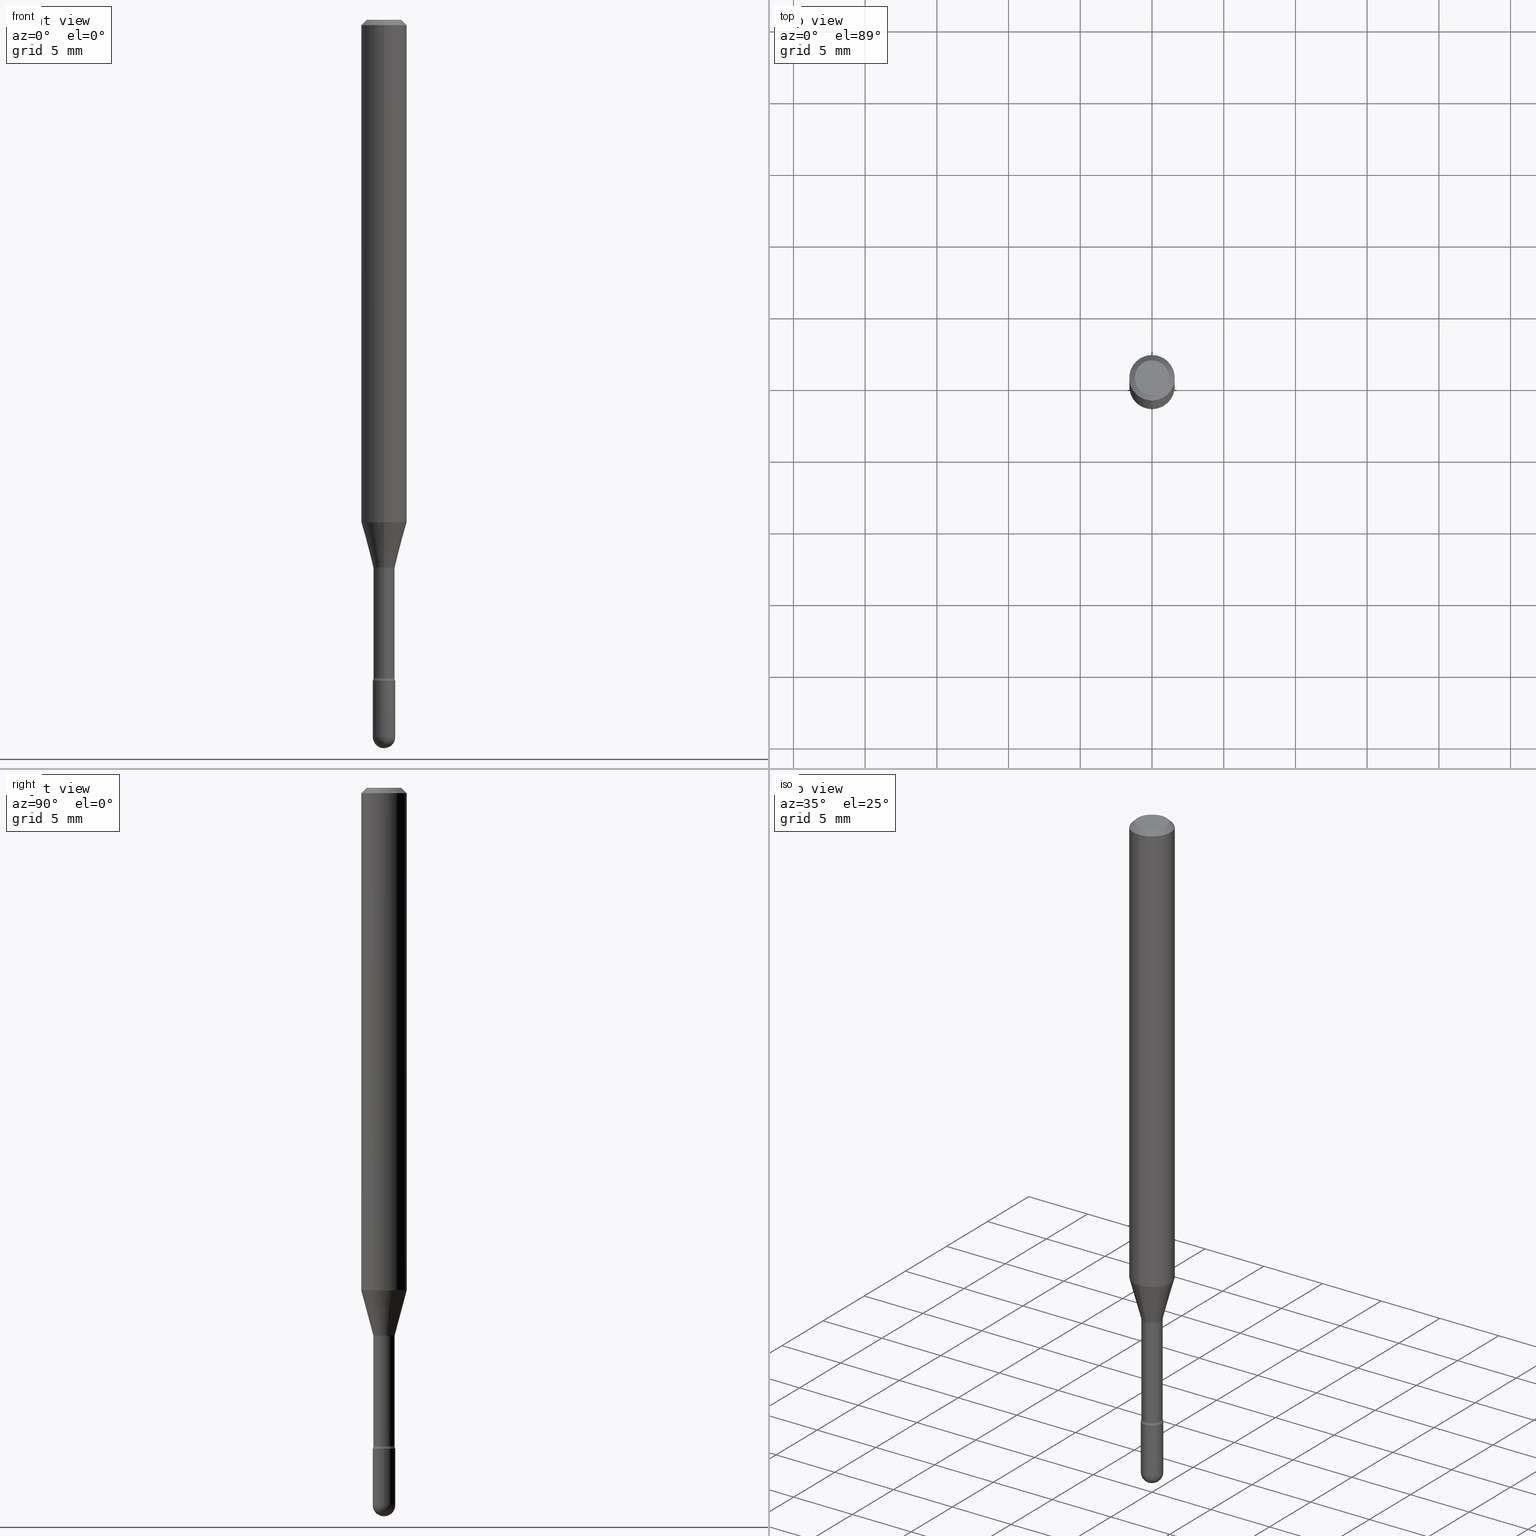
[diagram: canonical four-view strip — front | top / right | iso, engineering-drawing reading convention]
A machine part, canonical four-view strip (front | top / right | iso — engineering-drawing reading convention). The complete STEP part file that produces these views, byte-faithful:
ISO-10303-21;
HEADER;
FILE_DESCRIPTION (( 'STEP AP203' ),
    '1' );
FILE_NAME ('03710.STEP',
    '2024-04-09T20:13:52',
    ( '' ),
    ( '' ),
    'SwSTEP 2.0',
    'SolidWorks 2023',
    '' );
FILE_SCHEMA (( 'CONFIG_CONTROL_DESIGN' ));
ENDSEC;

DATA;
#1 = APPROVAL_PERSON_ORGANIZATION ( #212, #124, #166 ) ;
#2 = DIRECTION ( 'NONE',  ( -6.982962677686265922E-15, -1.000000000000000000, 3.491508908227665819E-15 ) ) ;
#3 = DIRECTION ( 'NONE',  ( 1.000000000000000000, -6.982962677686265922E-15, 4.876176775795935793E-29 ) ) ;
#4 = PERSON_AND_ORGANIZATION_ROLE ( 'classification_officer' ) ;
#5 = DIRECTION ( 'NONE',  ( -2.445468806185136877E-29, 3.491481338843145188E-15, 1.000000000000000000 ) ) ;
#6 = FACE_OUTER_BOUND ( 'NONE', #143, .T. ) ;
#7 = CALENDAR_DATE ( 2024, 9, 4 ) ;
#8 = AXIS2_PLACEMENT_3D ( 'NONE', #379, #525, #290 ) ;
#9 = VECTOR ( 'NONE', #113, 39.37007874015748143 ) ;
#10 = ORIENTED_EDGE ( 'NONE', *, *, #153, .F. ) ;
#11 = DIRECTION ( 'NONE',  ( -2.445449554586822988E-29, 3.491508908227663846E-15, 1.000000000000000000 ) ) ;
#12 = CARTESIAN_POINT ( 'NONE',  ( 3.682785373222362637E-29, -5.258124385996159682E-15, -1.505974787463811193 ) ) ;
#13 = DIRECTION ( 'NONE',  ( -6.982962677686266711E-15, -1.000000000000000000, 3.491508908227663846E-15 ) ) ;
#14 = AXIS2_PLACEMENT_3D ( 'NONE', #401, #169, #529 ) ;
#15 = CIRCLE ( 'NONE', #424, 0.03099999999999999978 ) ;
#16 = AXIS2_PLACEMENT_3D ( 'NONE', #60, #92, #13 ) ;
#17 = LINE ( 'NONE', #230, #24 ) ;
#18 = EDGE_LOOP ( 'NONE', ( #224, #415 ) ) ;
#19 = ORIENTED_EDGE ( 'NONE', *, *, #437, .F. ) ;
#20 = DIRECTION ( 'NONE',  ( -2.445449554586822988E-29, 3.491508908227663846E-15, 1.000000000000000000 ) ) ;
#21 = ORIENTED_EDGE ( 'NONE', *, *, #240, .F. ) ;
#22 = DIRECTION ( 'NONE',  ( -6.982962677686265922E-15, -1.000000000000000000, 3.483106191921935554E-15 ) ) ;
#23 = VERTEX_POINT ( 'NONE', #145 ) ;
#24 = VECTOR ( 'NONE', #356, 39.37007874015748143 ) ;
#25 = EDGE_LOOP ( 'NONE', ( #419, #312, #549, #412 ) ) ;
#26 = LENGTH_MEASURE_WITH_UNIT ( LENGTH_MEASURE( 0.02539999999999999897 ), #64 );
#27 = CARTESIAN_POINT ( 'NONE',  ( 3.668174331880254643E-31, -5.237263362341524514E-17, -0.01500000000000008271 ) ) ;
#28 = ORIENTED_EDGE ( 'NONE', *, *, #34, .T. ) ;
#29 = ORIENTED_EDGE ( 'NONE', *, *, #343, .T. ) ;
#30 = DIRECTION ( 'NONE',  ( -2.445449554586822988E-29, 3.491508908227663846E-15, 1.000000000000000000 ) ) ;
#31 = DIRECTION ( 'NONE',  ( 7.105427357601001859E-15, 1.000000000000000000, 0.000000000000000000 ) ) ;
#32 = ORIENTED_EDGE ( 'NONE', *, *, #454, .F. ) ;
#33 = DIRECTION ( 'NONE',  ( -6.982962677686265922E-15, -1.000000000000000000, 0.000000000000000000 ) ) ;
#34 = EDGE_CURVE ( 'NONE', #120, #344, #82, .T. ) ;
#35 = ADVANCED_FACE ( 'NONE', ( #304 ), #440, .T. ) ;
#36 = CIRCLE ( 'NONE', #16, 0.04749999999999999362 ) ;
#37 = EDGE_CURVE ( 'NONE', #120, #229, #253, .T. ) ;
#38 = PERSON_AND_ORGANIZATION ( #199, #167 ) ;
#39 = ORIENTED_EDGE ( 'NONE', *, *, #354, .F. ) ;
#40 = COORDINATED_UNIVERSAL_TIME_OFFSET ( 5, 0, .BEHIND. ) ;
#41 = DIRECTION ( 'NONE',  ( -7.105427357601001070E-15, -1.000000000000000000, 0.000000000000000000 ) ) ;
#42 = CIRCLE ( 'NONE', #8, 0.02914999999999999883 ) ;
#43 = TOROIDAL_SURFACE ( 'NONE', #204, 0.04415000000000000174, 0.01500000000000002373 ) ;
#44 = DATE_AND_TIME ( #531, #432 ) ;
#45 = DIRECTION ( 'NONE',  ( -6.982962677686266711E-15, -1.000000000000000000, 0.000000000000000000 ) ) ;
#46 = LINE ( 'NONE', #318, #59 ) ;
#47 = CIRCLE ( 'NONE', #90, 0.03100000000000001019 ) ;
#48 = SPHERICAL_SURFACE ( 'NONE', #423, 0.03100000000000001019 ) ;
#49 = VECTOR ( 'NONE', #5, 39.37007874015748143 ) ;
#50 = APPROVAL_PERSON_ORGANIZATION ( #80, #289, #255 ) ;
#51 = DIRECTION ( 'NONE',  ( 1.000000000000000000, -6.982962677686266711E-15, 4.876176775795935232E-29 ) ) ;
#52 = CC_DESIGN_PERSON_AND_ORGANIZATION_ASSIGNMENT ( #388, #244, ( #324 ) ) ;
#53 = CARTESIAN_POINT ( 'NONE',  ( 3.373585954896674557E-29, -4.816662601810898032E-15, -1.379536105567578330 ) ) ;
#54 = CARTESIAN_POINT ( 'NONE',  ( -2.035533620545178324E-16, -0.02915000000000525851, -1.505974787463811193 ) ) ;
#55 = CLOSED_SHELL ( 'NONE', ( #527, #225, #391, #135, #270, #251, #442, #314, #248, #470, #535, #138, #298, #481 ) ) ;
#56 = DIRECTION ( 'NONE',  ( -2.445449554586822988E-29, 3.491508908227663846E-15, 1.000000000000000000 ) ) ;
#57 = ORIENTED_EDGE ( 'NONE', *, *, #103, .T. ) ;
#58 = TOROIDAL_SURFACE ( 'NONE', #385, 0.04415000000000003644, 0.01500000000000001332 ) ;
#59 = VECTOR ( 'NONE', #505, 39.37007874015748143 ) ;
#60 = CARTESIAN_POINT ( 'NONE',  ( 2.023412866175955222E-45, -2.889206075058598815E-31, -8.274572252578077027E-17 ) ) ;
#61 = ORIENTED_EDGE ( 'NONE', *, *, #37, .T. ) ;
#62 = APPLICATION_PROTOCOL_DEFINITION ( 'international standard', 'config_control_design', 1994, #555 ) ;
#63 = ORIENTED_EDGE ( 'NONE', *, *, #370, .T. ) ;
#64 =( LENGTH_UNIT ( ) NAMED_UNIT ( * ) SI_UNIT ( $, .METRE. ) );
#65 = FACE_OUTER_BOUND ( 'NONE', #272, .T. ) ;
#66 = ORIENTED_EDGE ( 'NONE', *, *, #491, .F. ) ;
#67 = AXIS2_PLACEMENT_3D ( 'NONE', #53, #11, #263 ) ;
#68 = LOCAL_TIME ( 16, 13, 52.00000000000000000, #337 ) ;
#69 = DIRECTION ( 'NONE',  ( -6.982962677686266711E-15, -1.000000000000000000, 3.491508908227663846E-15 ) ) ;
#70 = ORIENTED_EDGE ( 'NONE', *, *, #153, .T. ) ;
#71 = DIRECTION ( 'NONE',  ( -2.438088387897960049E-29, 3.491481338843145188E-15, 1.000000000000000000 ) ) ;
#72 = CYLINDRICAL_SURFACE ( 'NONE', #132, 0.06250000000000000000 ) ;
#73 = DIRECTION ( 'NONE',  ( 1.000000000000000000, -6.982962677686270655E-15, 0.000000000000000000 ) ) ;
#74 = LINE ( 'NONE', #369, #9 ) ;
#75 = DIRECTION ( 'NONE',  ( -6.982962677686266711E-15, -1.000000000000000000, 0.000000000000000000 ) ) ;
#76 = CARTESIAN_POINT ( 'NONE',  ( -2.202682480855828862E-16, -0.03100000000000687969, -1.969000000000000306 ) ) ;
#77 = CARTESIAN_POINT ( 'NONE',  ( 3.840629472727447874E-16, 0.04749999999999999362, -2.485923956665947867E-16 ) ) ;
#78 = AXIS2_PLACEMENT_3D ( 'NONE', #27, #195, #366 ) ;
#79 = DIRECTION ( 'NONE',  ( -2.445449554586822988E-29, 3.491508908227663846E-15, 1.000000000000000000 ) ) ;
#80 = PERSON_AND_ORGANIZATION ( #199, #167 ) ;
#81 = APPLICATION_PROTOCOL_DEFINITION ( 'international standard', 'config_control_design', 1994, #84 ) ;
#82 = CIRCLE ( 'NONE', #405, 0.01500000000000001853 ) ;
#83 = CIRCLE ( 'NONE', #406, 0.03099999999999999978 ) ;
#84 = APPLICATION_CONTEXT ( 'configuration controlled 3d designs of mechanical parts and assemblies' ) ;
#85 = EDGE_CURVE ( 'NONE', #532, #538, #252, .T. ) ;
#86 = ORIENTED_EDGE ( 'NONE', *, *, #305, .T. ) ;
#87 = DATE_AND_TIME ( #342, #68 ) ;
#88 = EDGE_CURVE ( 'NONE', #106, #221, #280, .T. ) ;
#89 = DIRECTION ( 'NONE',  ( 6.982962677686265922E-15, 1.000000000000000000, -3.491508908227663846E-15 ) ) ;
#90 = AXIS2_PLACEMENT_3D ( 'NONE', #274, #457, #325 ) ;
#91 = AXIS2_PLACEMENT_3D ( 'NONE', #417, #30, #22 ) ;
#92 = DIRECTION ( 'NONE',  ( -2.445449554586822988E-29, 3.491508908227663846E-15, 1.000000000000000000 ) ) ;
#93 = PRODUCT_DEFINITION_SHAPE ( 'NONE', 'NONE',  #324 ) ;
#94 = PLANE ( 'NONE',  #559 ) ;
#95 = ORIENTED_EDGE ( 'NONE', *, *, #186, .F. ) ;
#96 = ORIENTED_EDGE ( 'NONE', *, *, #510, .T. ) ;
#97 = CLOSED_SHELL ( 'NONE', ( #485, #223, #285, #198, #35 ) ) ;
#98 = AXIS2_PLACEMENT_3D ( 'NONE', #12, #222, #353 ) ;
#99 = ORIENTED_EDGE ( 'NONE', *, *, #416, .T. ) ;
#100 = MECHANICAL_CONTEXT ( 'NONE', #555, 'mechanical' ) ;
#101 = CARTESIAN_POINT ( 'NONE',  ( -1.169113584055446105E-44, 1.669184350826100908E-30, 4.780733988912460139E-16 ) ) ;
#102 = ORIENTED_EDGE ( 'NONE', *, *, #88, .T. ) ;
#103 = EDGE_CURVE ( 'NONE', #327, #23, #211, .T. ) ;
#104 =( NAMED_UNIT ( * ) PLANE_ANGLE_UNIT ( ) SI_UNIT ( $, .RADIAN. ) );
#105 = CARTESIAN_POINT ( 'NONE',  ( 4.815128079378534076E-29, -6.874726756182154000E-15, -1.969000000000000306 ) ) ;
#106 = VERTEX_POINT ( 'NONE', #294 ) ;
#107 = FACE_OUTER_BOUND ( 'NONE', #421, .T. ) ;
#108 = AXIS2_PLACEMENT_3D ( 'NONE', #299, #445, #51 ) ;
#109 = CIRCLE ( 'NONE', #355, 0.03099999999999999978 ) ;
#110 = EDGE_CURVE ( 'NONE', #229, #348, #484, .T. ) ;
#111 = ORIENTED_EDGE ( 'NONE', *, *, #541, .T. ) ;
#112 = EDGE_LOOP ( 'NONE', ( #509, #374, #111, #86 ) ) ;
#113 = DIRECTION ( 'NONE',  ( -4.851104656540964275E-15, -0.7071067811865500152, -0.7071067811865450192 ) ) ;
#114 = EDGE_CURVE ( 'NONE', #231, #456, #564, .T. ) ;
#115 = ORIENTED_EDGE ( 'NONE', *, *, #507, .T. ) ;
#116 = APPROVAL_ROLE ( '' ) ;
#117 = DIRECTION ( 'NONE',  ( -6.982962677686265922E-15, -1.000000000000000000, 3.491508908227663846E-15 ) ) ;
#118 = ORIENTED_EDGE ( 'NONE', *, *, #498, .T. ) ;
#119 = AXIS2_PLACEMENT_3D ( 'NONE', #448, #313, #400 ) ;
#120 = VERTEX_POINT ( 'NONE', #371 ) ;
#121 = APPROVAL_STATUS ( 'not_yet_approved' ) ;
#122 = DIRECTION ( 'NONE',  ( -1.000000000000000000, 7.105427357601001070E-15, -4.926315508542082329E-29 ) ) ;
#123 = CARTESIAN_POINT ( 'NONE',  ( 4.815128079378534076E-29, -6.874726756182154000E-15, -1.969000000000000306 ) ) ;
#124 = APPROVAL ( #528, 'UNSPECIFIED' ) ;
#125 = COORDINATED_UNIVERSAL_TIME_OFFSET ( 5, 0, .BEHIND. ) ;
#126 = SPHERICAL_SURFACE ( 'NONE', #193, 0.03100000000000001019 ) ;
#127 = LINE ( 'NONE', #389, #49 ) ;
#128 = LINE ( 'NONE', #480, #461 ) ;
#129 = CARTESIAN_POINT ( 'NONE',  ( 3.673291439443893536E-29, -5.244569350972242727E-15, -1.502092501787273271 ) ) ;
#130 = CIRCLE ( 'NONE', #449, 0.03100000000000001019 ) ;
#131 = DATE_TIME_ROLE ( 'creation_date' ) ;
#132 = AXIS2_PLACEMENT_3D ( 'NONE', #101, #493, #137 ) ;
#133 = DIRECTION ( 'NONE',  ( 1.000000000000000000, -6.982962677686270655E-15, 0.000000000000000000 ) ) ;
#134 = DIRECTION ( 'NONE',  ( 6.982962677686265922E-15, 1.000000000000000000, 0.000000000000000000 ) ) ;
#135 = ADVANCED_FACE ( 'NONE', ( #278 ), #558, .T. ) ;
#136 = DIRECTION ( 'NONE',  ( -6.982962677686265922E-15, -1.000000000000000000, 3.491508908227663846E-15 ) ) ;
#137 = DIRECTION ( 'NONE',  ( -6.982962677686265922E-15, -1.000000000000000000, 3.491508908227663846E-15 ) ) ;
#138 = ADVANCED_FACE ( 'NONE', ( #513 ), #58, .F. ) ;
#139 = LINE ( 'NONE', #309, #148 ) ;
#140 = CC_DESIGN_SECURITY_CLASSIFICATION ( #487, ( #548 ) ) ;
#141 = DIRECTION ( 'NONE',  ( -6.982962677686265922E-15, -1.000000000000000000, 0.000000000000000000 ) ) ;
#142 = LINE ( 'NONE', #227, #158 ) ;
#143 = EDGE_LOOP ( 'NONE', ( #168, #463, #365, #284 ) ) ;
#144 = EDGE_CURVE ( 'NONE', #348, #344, #42, .T. ) ;
#145 = CARTESIAN_POINT ( 'NONE',  ( -0.03099999999999999978, -6.383868704336178649E-15, -1.969000000000000306 ) ) ;
#146 = CARTESIAN_POINT ( 'NONE',  ( 4.440892098500961428E-16, 0.06249999999999514971, -1.379536105567578552 ) ) ;
#147 = EDGE_LOOP ( 'NONE', ( #407, #283, #459, #66 ) ) ;
#148 = VECTOR ( 'NONE', #201, 39.37007874015748143 ) ;
#149 = ORIENTED_EDGE ( 'NONE', *, *, #491, .T. ) ;
#150 = CARTESIAN_POINT ( 'NONE',  ( -2.035533620545106341E-16, -0.02915000000000633404, -1.806783525791634704 ) ) ;
#151 = CARTESIAN_POINT ( 'NONE',  ( 0.03099999999999999978, -6.550018991669739348E-15, -1.813999999999999835 ) ) ;
#152 = EDGE_LOOP ( 'NONE', ( #202, #382, #360, #446, #444 ) ) ;
#153 = EDGE_CURVE ( 'NONE', #316, #231, #130, .T. ) ;
#154 = ORIENTED_EDGE ( 'NONE', *, *, #362, .T. ) ;
#155 = CARTESIAN_POINT ( 'NONE',  ( 0.000000000000000000, 0.000000000000000000, 0.000000000000000000 ) ) ;
#156 = ORIENTED_EDGE ( 'NONE', *, *, #478, .F. ) ;
#157 = AXIS2_PLACEMENT_3D ( 'NONE', #123, #247, #73 ) ;
#158 = VECTOR ( 'NONE', #543, 39.37007874015748854 ) ;
#159 = DIRECTION ( 'NONE',  ( -2.445449554586822708E-29, 3.491508908227663846E-15, 1.000000000000000000 ) ) ;
#160 = DIRECTION ( 'NONE',  ( 1.000000000000000000, -7.105427357601001070E-15, 4.926315846169667550E-29 ) ) ;
#161 = DIRECTION ( 'NONE',  ( -2.445449554586822428E-29, 3.491508908227663846E-15, 1.000000000000000000 ) ) ;
#162 = CARTESIAN_POINT ( 'NONE',  ( -1.169113584055446105E-44, 1.669184350826100908E-30, 4.780733988912460139E-16 ) ) ;
#163 = DATE_AND_TIME ( #171, #376 ) ;
#164 = AXIS2_PLACEMENT_3D ( 'NONE', #383, #563, #2 ) ;
#165 = CONICAL_SURFACE ( 'NONE', #78, 0.06250000000000000000, 0.7853981633974483900 ) ;
#166 = APPROVAL_ROLE ( '' ) ;
#167 = ORGANIZATION ( 'UNSPECIFIED', 'UNSPECIFIED', '' ) ;
#168 = ORIENTED_EDGE ( 'NONE', *, *, #507, .F. ) ;
#169 = DIRECTION ( 'NONE',  ( -2.445449554586822988E-29, 3.491508908227663846E-15, 1.000000000000000000 ) ) ;
#170 = DIRECTION ( 'NONE',  ( 1.000000000000000000, -6.982962677686270655E-15, 0.000000000000000000 ) ) ;
#171 = CALENDAR_DATE ( 2024, 9, 4 ) ;
#172 = CARTESIAN_POINT ( 'NONE',  ( 3.668174331880254643E-31, -5.237263362341524514E-17, -0.01500000000000008271 ) ) ;
#173 = COORDINATED_UNIVERSAL_TIME_OFFSET ( 5, 0, .BEHIND. ) ;
#174 = ORIENTED_EDGE ( 'NONE', *, *, #110, .F. ) ;
#175 = AXIS2_PLACEMENT_3D ( 'NONE', #105, #367, #196 ) ;
#176 = CIRCLE ( 'NONE', #119, 0.02915000000000002311 ) ;
#177 = LOCAL_TIME ( 16, 13, 52.00000000000000000, #479 ) ;
#178 = FACE_OUTER_BOUND ( 'NONE', #237, .T. ) ;
#179 = APPROVAL ( #121, 'UNSPECIFIED' ) ;
#180 = CYLINDRICAL_SURFACE ( 'NONE', #414, 0.03099999999999999978 ) ;
#181 = MANIFOLD_SOLID_BREP ( 'Body-Move/Copy2[2]', #55 ) ;
#182 = CARTESIAN_POINT ( 'NONE',  ( 2.071232074741134460E-16, 0.02914999999999473568, -1.505974787463811193 ) ) ;
#183 = TOROIDAL_SURFACE ( 'NONE', #517, 0.04415000000000003644, 0.01500000000000001332 ) ;
#184 = CC_DESIGN_APPROVAL ( #124, ( #324 ) ) ;
#185 = DIRECTION ( 'NONE',  ( -2.445449554586822988E-29, 3.491508908227663846E-15, 1.000000000000000000 ) ) ;
#186 = EDGE_CURVE ( 'NONE', #456, #327, #203, .T. ) ;
#187 = ORIENTED_EDGE ( 'NONE', *, *, #541, .F. ) ;
#188 = EDGE_LOOP ( 'NONE', ( #557, #410, #216, #553 ) ) ;
#189 = DIRECTION ( 'NONE',  ( -6.982962677686265922E-15, -1.000000000000000000, 4.370956789862821150E-15 ) ) ;
#190 = ORIENTED_EDGE ( 'NONE', *, *, #530, .F. ) ;
#191 = MANIFOLD_SOLID_BREP ( 'Body-Move/Copy2[1]', #97 ) ;
#192 = VERTEX_POINT ( 'NONE', #340 ) ;
#193 = AXIS2_PLACEMENT_3D ( 'NONE', #430, #386, #210 ) ;
#194 = AXIS2_PLACEMENT_3D ( 'NONE', #277, #413, #69 ) ;
#195 = DIRECTION ( 'NONE',  ( 2.445449554586822988E-29, -3.491508908227663846E-15, -1.000000000000000000 ) ) ;
#196 = DIRECTION ( 'NONE',  ( 1.000000000000000000, -6.982962677686270655E-15, 0.000000000000000000 ) ) ;
#197 = ORIENTED_EDGE ( 'NONE', *, *, #186, .T. ) ;
#198 = ADVANCED_FACE ( 'NONE', ( #241 ), #48, .T. ) ;
#199 = PERSON ( 'UNSPECIFIED', 'UNSPECIFIED', 'UNSPECIFIED', ('UNSPECIFIED'), ('UNSPECIFIED'), ('UNSPECIFIED') ) ;
#200 = ORIENTED_EDGE ( 'NONE', *, *, #343, .F. ) ;
#201 = DIRECTION ( 'NONE',  ( -2.445449554586822708E-29, 3.491508908227663846E-15, 1.000000000000000000 ) ) ;
#202 = ORIENTED_EDGE ( 'NONE', *, *, #288, .F. ) ;
#203 = CIRCLE ( 'NONE', #265, 0.03099999999999999978 ) ;
#204 = AXIS2_PLACEMENT_3D ( 'NONE', #349, #536, #136 ) ;
#205 =( NAMED_UNIT ( * ) SI_UNIT ( $, .STERADIAN. ) SOLID_ANGLE_UNIT ( ) );
#206 = DIRECTION ( 'NONE',  ( -2.445449554586822988E-29, 3.491508908227663846E-15, 1.000000000000000000 ) ) ;
#207 = FACE_OUTER_BOUND ( 'NONE', #495, .T. ) ;
#208 = APPROVAL_DATE_TIME ( #256, #179 ) ;
#209 = DIRECTION ( 'NONE',  ( 1.000000000000000000, -6.982962677686270655E-15, 0.000000000000000000 ) ) ;
#210 = DIRECTION ( 'NONE',  ( 6.982962677686265922E-15, 1.000000000000000000, 0.000000000000000000 ) ) ;
#211 = CIRCLE ( 'NONE', #157, 0.03099999999999999978 ) ;
#212 = PERSON_AND_ORGANIZATION ( #199, #167 ) ;
#213 = CARTESIAN_POINT ( 'NONE',  ( 4.815128079378533515E-29, -6.874726756182153211E-15, -1.968999999999999861 ) ) ;
#214 = DIRECTION ( 'NONE',  ( -6.982962677686265922E-15, -1.000000000000000000, 3.483106191921935554E-15 ) ) ;
#215 = EDGE_CURVE ( 'NONE', #261, #341, #502, .T. ) ;
#216 = ORIENTED_EDGE ( 'NONE', *, *, #144, .T. ) ;
#217 = AXIS2_PLACEMENT_3D ( 'NONE', #246, #71, #3 ) ;
#218 = CARTESIAN_POINT ( 'NONE',  ( 3.316907271900976096E-16, 0.04749999999999999362, 3.181716504191863621E-17 ) ) ;
#219 = EDGE_CURVE ( 'NONE', #106, #506, #471, .T. ) ;
#220 = DIRECTION ( 'NONE',  ( 1.000000000000000000, -6.982962677686266711E-15, 4.876176775795935232E-29 ) ) ;
#221 = VERTEX_POINT ( 'NONE', #394 ) ;
#222 = DIRECTION ( 'NONE',  ( -2.445449554586822988E-29, 3.491508908227663846E-15, 1.000000000000000000 ) ) ;
#223 = ADVANCED_FACE ( 'NONE', ( #297 ), #126, .T. ) ;
#224 = ORIENTED_EDGE ( 'NONE', *, *, #249, .T. ) ;
#225 = ADVANCED_FACE ( 'NONE', ( #207 ), #293, .T. ) ;
#226 = AXIS2_PLACEMENT_3D ( 'NONE', #477, #250, #31 ) ;
#227 = CARTESIAN_POINT ( 'NONE',  ( 2.107548809652055165E-16, 0.02966111260565873833, -1.502092501787273271 ) ) ;
#228 = AXIS2_PLACEMENT_3D ( 'NONE', #499, #20, #189 ) ;
#229 = VERTEX_POINT ( 'NONE', #476 ) ;
#230 = CARTESIAN_POINT ( 'NONE',  ( -2.035533620545547363E-16, -0.02915000000000001271, 5.798508835660825861E-16 ) ) ;
#231 = VERTEX_POINT ( 'NONE', #76 ) ;
#232 = ORIENTED_EDGE ( 'NONE', *, *, #399, .T. ) ;
#233 = LINE ( 'NONE', #363, #472 ) ;
#234 = VERTEX_POINT ( 'NONE', #378 ) ;
#235 = CIRCLE ( 'NONE', #566, 0.01500000000000001159 ) ;
#236 = DIRECTION ( 'NONE',  ( -6.982962677686265922E-15, -1.000000000000000000, 3.491508908227663846E-15 ) ) ;
#237 = EDGE_LOOP ( 'NONE', ( #57, #361, #269, #546, #197 ) ) ;
#238 = EDGE_LOOP ( 'NONE', ( #174, #358, #28, #469 ) ) ;
#239 = CARTESIAN_POINT ( 'NONE',  ( -4.364351673553912750E-16, -0.06250000000000005551, -0.01499999999999986587 ) ) ;
#240 = EDGE_CURVE ( 'NONE', #316, #327, #47, .T. ) ;
#241 = FACE_OUTER_BOUND ( 'NONE', #368, .T. ) ;
#242 = PLANE ( 'NONE',  #217 ) ;
#243 = AXIS2_PLACEMENT_3D ( 'NONE', #333, #411, #236 ) ;
#244 = PERSON_AND_ORGANIZATION_ROLE ( 'creator' ) ;
#245 = CARTESIAN_POINT ( 'NONE',  ( 4.815128079378533515E-29, -6.874726756182153211E-15, -1.968999999999999861 ) ) ;
#246 = CARTESIAN_POINT ( 'NONE',  ( 4.436080414419837365E-29, -6.333547148661465016E-15, -1.813999999999999835 ) ) ;
#247 = DIRECTION ( 'NONE',  ( -2.445468806185136597E-29, 3.491481338843145583E-15, 1.000000000000000000 ) ) ;
#248 = ADVANCED_FACE ( 'NONE', ( #65 ), #165, .T. ) ;
#249 = EDGE_CURVE ( 'NONE', #341, #261, #109, .T. ) ;
#250 = DIRECTION ( 'NONE',  ( 1.000000000000000000, -7.105427357601001070E-15, 4.926315846169667550E-29 ) ) ;
#251 = ADVANCED_FACE ( 'NONE', ( #433 ), #291, .T. ) ;
#252 = CIRCLE ( 'NONE', #496, 0.06250000000000000000 ) ;
#253 = CIRCLE ( 'NONE', #14, 0.02966111260566398414 ) ;
#254 = CIRCLE ( 'NONE', #67, 0.06250000000000000000 ) ;
#255 = APPROVAL_ROLE ( '' ) ;
#256 = DATE_AND_TIME ( #7, #177 ) ;
#257 = CARTESIAN_POINT ( 'NONE',  ( 4.418397968381962600E-29, -6.308400775540479740E-15, -1.806783525791634704 ) ) ;
#258 = CYLINDRICAL_SURFACE ( 'NONE', #431, 0.06250000000000000000 ) ;
#259 = CIRCLE ( 'NONE', #91, 0.06250000000000000000 ) ;
#260 = CARTESIAN_POINT ( 'NONE',  ( 4.364351673553919652E-16, 0.06249999999999995143, -0.01500000000000030129 ) ) ;
#261 = VERTEX_POINT ( 'NONE', #434 ) ;
#262 = CARTESIAN_POINT ( 'NONE',  ( 4.436045492020496364E-29, -6.333597159524981025E-15, -1.813999999999999835 ) ) ;
#263 = DIRECTION ( 'NONE',  ( -6.982962677686265922E-15, -1.000000000000000000, 4.370956789862821150E-15 ) ) ;
#264 = ORIENTED_EDGE ( 'NONE', *, *, #522, .T. ) ;
#265 = AXIS2_PLACEMENT_3D ( 'NONE', #565, #384, #209 ) ;
#266 = DIRECTION ( 'NONE',  ( 1.000000000000000000, -6.982962677686270655E-15, 0.000000000000000000 ) ) ;
#267 = CIRCLE ( 'NONE', #346, 0.02966111260566398414 ) ;
#268 =( GEOMETRIC_REPRESENTATION_CONTEXT ( 3 ) GLOBAL_UNCERTAINTY_ASSIGNED_CONTEXT ( ( #418 ) ) GLOBAL_UNIT_ASSIGNED_CONTEXT ( ( #422, #104, #205 ) ) REPRESENTATION_CONTEXT ( 'NONE', 'WORKASPACE' ) );
#269 = ORIENTED_EDGE ( 'NONE', *, *, #249, .F. ) ;
#270 = ADVANCED_FACE ( 'NONE', ( #393 ), #258, .T. ) ;
#271 = VERTEX_POINT ( 'NONE', #77 ) ;
#272 = EDGE_LOOP ( 'NONE', ( #395, #501, #403, #554 ) ) ;
#273 = PERSON_AND_ORGANIZATION ( #199, #167 ) ;
#274 = CARTESIAN_POINT ( 'NONE',  ( 4.815128079378533515E-29, -6.874726756182153211E-15, -1.968999999999999861 ) ) ;
#275 = EDGE_LOOP ( 'NONE', ( #21, #70, #320, #380 ) ) ;
#276 = CC_DESIGN_PERSON_AND_ORGANIZATION_ASSIGNMENT ( #483, #292, ( #548 ) ) ;
#277 = CARTESIAN_POINT ( 'NONE',  ( 2.023412866175955222E-45, -2.889206075058598815E-31, -8.274572252578077027E-17 ) ) ;
#278 = FACE_OUTER_BOUND ( 'NONE', #25, .T. ) ;
#279 = ORIENTED_EDGE ( 'NONE', *, *, #114, .F. ) ;
#280 = CIRCLE ( 'NONE', #429, 0.01500000000000001159 ) ;
#281 = VECTOR ( 'NONE', #404, 39.37007874015748143 ) ;
#282 = CARTESIAN_POINT ( 'NONE',  ( 2.071232074740692452E-16, 0.02915000000000001271, 3.762959142164096390E-16 ) ) ;
#283 = ORIENTED_EDGE ( 'NONE', *, *, #478, .T. ) ;
#284 = ORIENTED_EDGE ( 'NONE', *, *, #144, .F. ) ;
#285 = ADVANCED_FACE ( 'NONE', ( #465 ), #242, .T. ) ;
#286 = PLANE ( 'NONE',  #387 ) ;
#287 = DIRECTION ( 'NONE',  ( -6.982962677686265922E-15, -1.000000000000000000, 3.491508908227663846E-15 ) ) ;
#288 = EDGE_CURVE ( 'NONE', #23, #261, #127, .T. ) ;
#289 = APPROVAL ( #427, 'UNSPECIFIED' ) ;
#290 = DIRECTION ( 'NONE',  ( -6.982962677686265922E-15, -1.000000000000000000, 0.000000000000000000 ) ) ;
#291 = CONICAL_SURFACE ( 'NONE', #308, 0.02966111260566398414, 0.2617993877991500740 ) ;
#292 = PERSON_AND_ORGANIZATION_ROLE ( 'creator' ) ;
#293 = CYLINDRICAL_SURFACE ( 'NONE', #164, 0.02915000000000001271 ) ;
#294 = CARTESIAN_POINT ( 'NONE',  ( 2.136957277798944871E-16, 0.02914999999999371566, -1.806783525791634704 ) ) ;
#295 = CARTESIAN_POINT ( 'NONE',  ( 2.164718430083224270E-16, 0.03099999999999312680, -1.969000000000000306 ) ) ;
#296 = PERSON_AND_ORGANIZATION ( #199, #167 ) ;
#297 = FACE_OUTER_BOUND ( 'NONE', #275, .T. ) ;
#298 = ADVANCED_FACE ( 'NONE', ( #6 ), #561, .T. ) ;
#299 = CARTESIAN_POINT ( 'NONE',  ( 0.000000000000000000, 0.000000000000000000, 0.000000000000000000 ) ) ;
#300 = AXIS2_PLACEMENT_3D ( 'NONE', #326, #364, #462 ) ;
#301 = AXIS2_PLACEMENT_3D ( 'NONE', #409, #185, #141 ) ;
#302 = DIRECTION ( 'NONE',  ( -2.445449554586822988E-29, 3.491508908227663846E-15, 1.000000000000000000 ) ) ;
#303 = SECURITY_CLASSIFICATION_LEVEL ( 'unclassified' ) ;
#304 = FACE_OUTER_BOUND ( 'NONE', #152, .T. ) ;
#305 = EDGE_CURVE ( 'NONE', #192, #221, #15, .T. ) ;
#306 = CARTESIAN_POINT ( 'NONE',  ( -3.082978022198118430E-16, -0.04415000000000526142, -1.505974787463810971 ) ) ;
#307 = CARTESIAN_POINT ( 'NONE',  ( 0.000000000000000000, 0.000000000000000000, 0.000000000000000000 ) ) ;
#308 = AXIS2_PLACEMENT_3D ( 'NONE', #129, #302, #492 ) ;
#309 = CARTESIAN_POINT ( 'NONE',  ( -4.364351673553916201E-16, -0.06250000000000000000, 6.962927056554750043E-16 ) ) ;
#310 = CARTESIAN_POINT ( 'NONE',  ( 4.418432751852640684E-29, -6.308350963630715621E-15, -1.806783525791634704 ) ) ;
#311 = CC_DESIGN_PERSON_AND_ORGANIZATION_ASSIGNMENT ( #296, #4, ( #487 ) ) ;
#312 = ORIENTED_EDGE ( 'NONE', *, *, #539, .T. ) ;
#313 = DIRECTION ( 'NONE',  ( -2.445449554586822988E-29, 3.491508908227663846E-15, 1.000000000000000000 ) ) ;
#314 = ADVANCED_FACE ( 'NONE', ( #107 ), #72, .T. ) ;
#315 = ORIENTED_EDGE ( 'NONE', *, *, #240, .T. ) ;
#316 = VERTEX_POINT ( 'NONE', #441 ) ;
#317 = AXIS2_PLACEMENT_3D ( 'NONE', #534, #439, #133 ) ;
#318 = CARTESIAN_POINT ( 'NONE',  ( 4.440892098500625669E-16, 0.06250000000000000000, 2.598540921270170728E-16 ) ) ;
#319 = CIRCLE ( 'NONE', #228, 0.06250000000000000000 ) ;
#320 = ORIENTED_EDGE ( 'NONE', *, *, #351, .F. ) ;
#321 = ORIENTED_EDGE ( 'NONE', *, *, #399, .F. ) ;
#322 = CARTESIAN_POINT ( 'NONE',  ( 4.418432751852640684E-29, -6.308350963630715621E-15, -1.806783525791634704 ) ) ;
#323 = EDGE_LOOP ( 'NONE', ( #61, #63, #32, #372 ) ) ;
#324 = PRODUCT_DEFINITION ( 'UNKNOWN', '', #548, #458 ) ;
#325 = DIRECTION ( 'NONE',  ( 6.982962677686265922E-15, 1.000000000000000000, 0.000000000000000000 ) ) ;
#326 = CARTESIAN_POINT ( 'NONE',  ( 3.668174331880254643E-31, -5.237263362341524514E-17, -0.01500000000000008271 ) ) ;
#327 = VERTEX_POINT ( 'NONE', #295 ) ;
#328 = DIMENSIONAL_EXPONENTS ( 1.000000000000000000, 0.000000000000000000, 0.000000000000000000, 0.000000000000000000, 0.000000000000000000, 0.000000000000000000, 0.000000000000000000 ) ;
#329 = EDGE_CURVE ( 'NONE', #456, #341, #128, .T. ) ;
#330 = DIRECTION ( 'NONE',  ( -1.000000000000000000, 6.982962677686265922E-15, -4.883557194083112901E-29 ) ) ;
#331 = AXIS2_PLACEMENT_3D ( 'NONE', #262, #447, #497 ) ;
#332 = CIRCLE ( 'NONE', #331, 0.03099999999999999978 ) ;
#333 = CARTESIAN_POINT ( 'NONE',  ( 3.682814365644040998E-29, -5.258082867198169507E-15, -1.505974787463811193 ) ) ;
#334 = CC_DESIGN_DATE_AND_TIME_ASSIGNMENT ( #381, #131, ( #324 ) ) ;
#335 = DIRECTION ( 'NONE',  ( -2.445449554586822988E-29, 3.491508908227663846E-15, 1.000000000000000000 ) ) ;
#336 = CC_DESIGN_PERSON_AND_ORGANIZATION_ASSIGNMENT ( #273, #511, ( #350 ) ) ;
#337 = COORDINATED_UNIVERSAL_TIME_OFFSET ( 5, 0, .BEHIND. ) ;
#338 = TOROIDAL_SURFACE ( 'NONE', #243, 0.04415000000000000174, 0.01500000000000002373 ) ;
#339 = SHAPE_DEFINITION_REPRESENTATION ( #93, #428 ) ;
#340 = CARTESIAN_POINT ( 'NONE',  ( -2.164718430082299331E-16, -0.03100000000000634193, -1.813999999999999835 ) ) ;
#341 = VERTEX_POINT ( 'NONE', #151 ) ;
#342 = CALENDAR_DATE ( 2024, 9, 4 ) ;
#343 = EDGE_CURVE ( 'NONE', #221, #192, #332, .T. ) ;
#344 = VERTEX_POINT ( 'NONE', #54 ) ;
#345 = DIRECTION ( 'NONE',  ( -6.982962677686267499E-15, -1.000000000000000000, 0.000000000000000000 ) ) ;
#346 = AXIS2_PLACEMENT_3D ( 'NONE', #556, #335, #33 ) ;
#347 = CALENDAR_DATE ( 2024, 9, 4 ) ;
#348 = VERTEX_POINT ( 'NONE', #182 ) ;
#349 = CARTESIAN_POINT ( 'NONE',  ( 3.682814365644040998E-29, -5.258082867198169507E-15, -1.505974787463811193 ) ) ;
#350 = PRODUCT ( '03710', '03710', '', ( #100 ) ) ;
#351 = EDGE_CURVE ( 'NONE', #23, #231, #83, .T. ) ;
#352 = DIRECTION ( 'NONE',  ( -1.000000000000000000, 6.982962677686265922E-15, -4.883557194083112901E-29 ) ) ;
#353 = DIRECTION ( 'NONE',  ( -6.982962677686265922E-15, -1.000000000000000000, 0.000000000000000000 ) ) ;
#354 = EDGE_CURVE ( 'NONE', #344, #348, #397, .T. ) ;
#355 = AXIS2_PLACEMENT_3D ( 'NONE', #551, #512, #170 ) ;
#356 = DIRECTION ( 'NONE',  ( -2.445449554586822708E-29, 3.491508908227663846E-15, 1.000000000000000000 ) ) ;
#357 = CARTESIAN_POINT ( 'NONE',  ( -4.364351673553580935E-16, -0.06250000000000484335, -1.379536105567578108 ) ) ;
#358 = ORIENTED_EDGE ( 'NONE', *, *, #37, .F. ) ;
#359 = CARTESIAN_POINT ( 'NONE',  ( 0.03099999999999999978, -6.820608795430084234E-15, -1.969000000000000306 ) ) ;
#360 = ORIENTED_EDGE ( 'NONE', *, *, #114, .T. ) ;
#361 = ORIENTED_EDGE ( 'NONE', *, *, #288, .T. ) ;
#362 = EDGE_CURVE ( 'NONE', #506, #106, #176, .T. ) ;
#363 = CARTESIAN_POINT ( 'NONE',  ( -2.071224423039644956E-16, -0.02966111260566922994, -1.502092501787273271 ) ) ;
#364 = DIRECTION ( 'NONE',  ( 2.445449554586822988E-29, -3.491508908227663846E-15, -1.000000000000000000 ) ) ;
#365 = ORIENTED_EDGE ( 'NONE', *, *, #437, .T. ) ;
#366 = DIRECTION ( 'NONE',  ( 6.982962677686265922E-15, 1.000000000000000000, -3.483106191921935554E-15 ) ) ;
#367 = DIRECTION ( 'NONE',  ( -2.445468806185136597E-29, 3.491481338843145583E-15, 1.000000000000000000 ) ) ;
#368 = EDGE_LOOP ( 'NONE', ( #10, #315, #95, #279 ) ) ;
#369 = CARTESIAN_POINT ( 'NONE',  ( -4.287811248607203282E-16, -0.06250000000000005551, -0.01499999999999986587 ) ) ;
#370 = EDGE_CURVE ( 'NONE', #229, #473, #142, .T. ) ;
#371 = CARTESIAN_POINT ( 'NONE',  ( -2.071224423039644956E-16, -0.02966111260566922994, -1.502092501787273271 ) ) ;
#372 = ORIENTED_EDGE ( 'NONE', *, *, #510, .F. ) ;
#373 = DIRECTION ( 'NONE',  ( -1.807323732225328562E-15, -0.2588190451025179639, 0.9659258262890690894 ) ) ;
#374 = ORIENTED_EDGE ( 'NONE', *, *, #362, .F. ) ;
#375 = CARTESIAN_POINT ( 'NONE',  ( -1.169113584055446105E-44, 1.669184350826100908E-30, 4.780733988912460139E-16 ) ) ;
#376 = LOCAL_TIME ( 16, 13, 52.00000000000000000, #125 ) ;
#377 = EDGE_CURVE ( 'NONE', #271, #538, #452, .T. ) ;
#378 = CARTESIAN_POINT ( 'NONE',  ( -3.773273898774340269E-16, -0.04749999999999999362, 8.310095061503324617E-17 ) ) ;
#379 = CARTESIAN_POINT ( 'NONE',  ( 3.682785373222362637E-29, -5.258124385996159682E-15, -1.505974787463811193 ) ) ;
#380 = ORIENTED_EDGE ( 'NONE', *, *, #103, .F. ) ;
#381 = DATE_AND_TIME ( #347, #533 ) ;
#382 = ORIENTED_EDGE ( 'NONE', *, *, #351, .T. ) ;
#383 = CARTESIAN_POINT ( 'NONE',  ( -1.169113584055446105E-44, 1.669184350826100908E-30, 4.780733988912460139E-16 ) ) ;
#384 = DIRECTION ( 'NONE',  ( -2.445468806185136597E-29, 3.491481338843145583E-15, 1.000000000000000000 ) ) ;
#385 = AXIS2_PLACEMENT_3D ( 'NONE', #322, #206, #117 ) ;
#386 = DIRECTION ( 'NONE',  ( -1.000000000000000000, 6.982962677686265922E-15, -4.883557194083112340E-29 ) ) ;
#387 = AXIS2_PLACEMENT_3D ( 'NONE', #467, #161, #519 ) ;
#388 = PERSON_AND_ORGANIZATION ( #199, #167 ) ;
#389 = CARTESIAN_POINT ( 'NONE',  ( -0.03099999999999999978, 2.202682480856310560E-16, -1.524869877979020612E-30 ) ) ;
#390 = PERSON_AND_ORGANIZATION ( #199, #167 ) ;
#391 = ADVANCED_FACE ( 'NONE', ( #500 ), #183, .F. ) ;
#392 = CARTESIAN_POINT ( 'NONE',  ( 3.137046178381285686E-16, 0.04414999999999372898, -1.806783525791634926 ) ) ;
#393 = FACE_OUTER_BOUND ( 'NONE', #147, .T. ) ;
#394 = CARTESIAN_POINT ( 'NONE',  ( 2.202682480856753802E-16, 0.03099999999999367151, -1.813999999999999835 ) ) ;
#395 = ORIENTED_EDGE ( 'NONE', *, *, #539, .F. ) ;
#396 = PRODUCT_RELATED_PRODUCT_CATEGORY ( 'detail', '', ( #350 ) ) ;
#397 = CIRCLE ( 'NONE', #98, 0.02914999999999999883 ) ;
#398 = CC_DESIGN_APPROVAL ( #179, ( #487 ) ) ;
#399 = EDGE_CURVE ( 'NONE', #473, #464, #254, .T. ) ;
#400 = DIRECTION ( 'NONE',  ( -6.982962677686266711E-15, -1.000000000000000000, 0.000000000000000000 ) ) ;
#401 = CARTESIAN_POINT ( 'NONE',  ( 3.673291439443893536E-29, -5.244569350972242727E-15, -1.502092501787273271 ) ) ;
#402 = DIRECTION ( 'NONE',  ( -2.445468806185136597E-29, 3.491481338843145583E-15, 1.000000000000000000 ) ) ;
#403 = ORIENTED_EDGE ( 'NONE', *, *, #377, .T. ) ;
#404 = DIRECTION ( 'NONE',  ( 4.937700262164548042E-15, 0.7071067811865451302, -0.7071067811865499042 ) ) ;
#405 = AXIS2_PLACEMENT_3D ( 'NONE', #306, #352, #345 ) ;
#406 = AXIS2_PLACEMENT_3D ( 'NONE', #494, #402, #266 ) ;
#407 = ORIENTED_EDGE ( 'NONE', *, *, #454, .T. ) ;
#408 = FACE_OUTER_BOUND ( 'NONE', #453, .T. ) ;
#409 = CARTESIAN_POINT ( 'NONE',  ( 3.673291439443893536E-29, -5.244569350972242727E-15, -1.502092501787273271 ) ) ;
#410 = ORIENTED_EDGE ( 'NONE', *, *, #110, .T. ) ;
#411 = DIRECTION ( 'NONE',  ( -2.445449554586822988E-29, 3.491508908227663846E-15, 1.000000000000000000 ) ) ;
#412 = ORIENTED_EDGE ( 'NONE', *, *, #377, .F. ) ;
#413 = DIRECTION ( 'NONE',  ( -2.445449554586822988E-29, 3.491508908227663846E-15, 1.000000000000000000 ) ) ;
#414 = AXIS2_PLACEMENT_3D ( 'NONE', #307, #537, #220 ) ;
#415 = ORIENTED_EDGE ( 'NONE', *, *, #215, .T. ) ;
#416 = EDGE_CURVE ( 'NONE', #271, #234, #36, .T. ) ;
#417 = CARTESIAN_POINT ( 'NONE',  ( 3.668174331880254643E-31, -5.237263362341524514E-17, -0.01500000000000008271 ) ) ;
#418 = UNCERTAINTY_MEASURE_WITH_UNIT (LENGTH_MEASURE( 1.000000000000000082E-05 ), #422, 'distance_accuracy_value', 'NONE');
#419 = ORIENTED_EDGE ( 'NONE', *, *, #522, .F. ) ;
#420 = FACE_OUTER_BOUND ( 'NONE', #544, .T. ) ;
#421 = EDGE_LOOP ( 'NONE', ( #156, #232, #149, #190 ) ) ;
#422 =( CONVERSION_BASED_UNIT ( 'INCH', #26 ) LENGTH_UNIT ( ) NAMED_UNIT ( #328 ) );
#423 = AXIS2_PLACEMENT_3D ( 'NONE', #213, #490, #134 ) ;
#424 = AXIS2_PLACEMENT_3D ( 'NONE', #475, #515, #466 ) ;
#425 = CC_DESIGN_APPROVAL ( #289, ( #548 ) ) ;
#426 = DIRECTION ( 'NONE',  ( -6.982962677686265922E-15, -1.000000000000000000, 3.491508908227665819E-15 ) ) ;
#427 = APPROVAL_STATUS ( 'not_yet_approved' ) ;
#428 = ADVANCED_BREP_SHAPE_REPRESENTATION ( '03710', ( #191, #181, #474 ), #268 ) ;
#429 = AXIS2_PLACEMENT_3D ( 'NONE', #392, #160, #523 ) ;
#430 = CARTESIAN_POINT ( 'NONE',  ( 4.815128079378533515E-29, -6.874726756182153211E-15, -1.968999999999999861 ) ) ;
#431 = AXIS2_PLACEMENT_3D ( 'NONE', #375, #521, #287 ) ;
#432 = LOCAL_TIME ( 16, 13, 52.00000000000000000, #40 ) ;
#433 = FACE_OUTER_BOUND ( 'NONE', #323, .T. ) ;
#434 = CARTESIAN_POINT ( 'NONE',  ( -0.03099999999999999978, -6.383868704336178649E-15, -1.813999999999999835 ) ) ;
#435 = APPROVAL_DATE_TIME ( #163, #289 ) ;
#436 = DIRECTION ( 'NONE',  ( -2.445449554586822988E-29, 3.491508908227663846E-15, 1.000000000000000000 ) ) ;
#437 = EDGE_CURVE ( 'NONE', #506, #344, #17, .T. ) ;
#438 = DIRECTION ( 'NONE',  ( -6.982962677686265922E-15, -1.000000000000000000, 3.491508908227663846E-15 ) ) ;
#439 = DIRECTION ( 'NONE',  ( -2.445468806185136597E-29, 3.491481338843145583E-15, 1.000000000000000000 ) ) ;
#440 = CYLINDRICAL_SURFACE ( 'NONE', #108, 0.03099999999999999978 ) ;
#441 = CARTESIAN_POINT ( 'NONE',  ( 4.892263120118500713E-29, -6.981064475147612310E-15, -2.000000000000000000 ) ) ;
#442 = ADVANCED_FACE ( 'NONE', ( #540 ), #486, .T. ) ;
#443 = FACE_OUTER_BOUND ( 'NONE', #238, .T. ) ;
#444 = ORIENTED_EDGE ( 'NONE', *, *, #215, .F. ) ;
#445 = DIRECTION ( 'NONE',  ( -2.445468806185136597E-29, 3.491481338843145583E-15, 1.000000000000000000 ) ) ;
#446 = ORIENTED_EDGE ( 'NONE', *, *, #329, .T. ) ;
#447 = DIRECTION ( 'NONE',  ( -2.445449554586822988E-29, 3.491508908227663846E-15, 1.000000000000000000 ) ) ;
#448 = CARTESIAN_POINT ( 'NONE',  ( 4.418397968381962600E-29, -6.308400775540479740E-15, -1.806783525791634704 ) ) ;
#449 = AXIS2_PLACEMENT_3D ( 'NONE', #245, #122, #41 ) ;
#450 = AXIS2_PLACEMENT_3D ( 'NONE', #162, #79, #426 ) ;
#451 = APPROVAL_PERSON_ORGANIZATION ( #390, #179, #116 ) ;
#452 = LINE ( 'NONE', #260, #281 ) ;
#453 = EDGE_LOOP ( 'NONE', ( #99, #264 ) ) ;
#454 = EDGE_CURVE ( 'NONE', #464, #473, #319, .T. ) ;
#455 = CC_DESIGN_DATE_AND_TIME_ASSIGNMENT ( #87, #524, ( #487 ) ) ;
#456 = VERTEX_POINT ( 'NONE', #359 ) ;
#457 = DIRECTION ( 'NONE',  ( 1.000000000000000000, -6.982962677686265922E-15, 4.883557194083112340E-29 ) ) ;
#458 = DESIGN_CONTEXT ( 'detailed design', #84, 'design' ) ;
#459 = ORIENTED_EDGE ( 'NONE', *, *, #85, .F. ) ;
#460 = CARTESIAN_POINT ( 'NONE',  ( 4.440892098500965372E-16, 0.06249999999999995837, -0.01500000000000030129 ) ) ;
#461 = VECTOR ( 'NONE', #552, 39.37007874015748143 ) ;
#462 = DIRECTION ( 'NONE',  ( 6.982962677686265922E-15, 1.000000000000000000, -3.483106191921935554E-15 ) ) ;
#463 = ORIENTED_EDGE ( 'NONE', *, *, #219, .T. ) ;
#464 = VERTEX_POINT ( 'NONE', #357 ) ;
#465 = FACE_OUTER_BOUND ( 'NONE', #18, .T. ) ;
#466 = DIRECTION ( 'NONE',  ( -6.982962677686265922E-15, -1.000000000000000000, 0.000000000000000000 ) ) ;
#467 = CARTESIAN_POINT ( 'NONE',  ( 2.164718430083186060E-16, 0.03099999999999366457, -1.813999999999999835 ) ) ;
#468 = LINE ( 'NONE', #282, #526 ) ;
#469 = ORIENTED_EDGE ( 'NONE', *, *, #354, .T. ) ;
#470 = ADVANCED_FACE ( 'NONE', ( #408 ), #94, .F. ) ;
#471 = CIRCLE ( 'NONE', #547, 0.02915000000000002311 ) ;
#472 = VECTOR ( 'NONE', #373, 39.37007874015748854 ) ;
#473 = VERTEX_POINT ( 'NONE', #146 ) ;
#474 = AXIS2_PLACEMENT_3D ( 'NONE', #155, #508, #550 ) ;
#475 = CARTESIAN_POINT ( 'NONE',  ( 4.436045492020496364E-29, -6.333597159524981025E-15, -1.813999999999999835 ) ) ;
#476 = CARTESIAN_POINT ( 'NONE',  ( 3.274220454076509529E-16, 0.02966111260565873833, -1.502092501787273271 ) ) ;
#477 = CARTESIAN_POINT ( 'NONE',  ( 3.137046178381209758E-16, 0.04414999999999474206, -1.505974787463811415 ) ) ;
#478 = EDGE_CURVE ( 'NONE', #473, #538, #46, .T. ) ;
#479 = COORDINATED_UNIVERSAL_TIME_OFFSET ( 5, 0, .BEHIND. ) ;
#480 = CARTESIAN_POINT ( 'NONE',  ( 0.03099999999999999978, -2.164718430082742572E-16, 1.511614800496739984E-30 ) ) ;
#481 = ADVANCED_FACE ( 'NONE', ( #443 ), #43, .F. ) ;
#482 = DIRECTION ( 'NONE',  ( -2.445449554586822988E-29, 3.491508908227663846E-15, 1.000000000000000000 ) ) ;
#483 = PERSON_AND_ORGANIZATION ( #199, #167 ) ;
#484 = CIRCLE ( 'NONE', #226, 0.01500000000000001853 ) ;
#485 = ADVANCED_FACE ( 'NONE', ( #178 ), #180, .T. ) ;
#486 = CONICAL_SURFACE ( 'NONE', #301, 0.02966111260566398414, 0.2617993877991500740 ) ;
#487 = SECURITY_CLASSIFICATION ( '', '', #303 ) ;
#488 = ORIENTED_EDGE ( 'NONE', *, *, #219, .F. ) ;
#489 = PERSON_AND_ORGANIZATION_ROLE ( 'design_supplier' ) ;
#490 = DIRECTION ( 'NONE',  ( -1.000000000000000000, 6.982962677686265922E-15, -4.883557194083112340E-29 ) ) ;
#491 = EDGE_CURVE ( 'NONE', #464, #532, #139, .T. ) ;
#492 = DIRECTION ( 'NONE',  ( -6.982962677686265922E-15, -1.000000000000000000, 0.000000000000000000 ) ) ;
#493 = DIRECTION ( 'NONE',  ( -2.445449554586822988E-29, 3.491508908227663846E-15, 1.000000000000000000 ) ) ;
#494 = CARTESIAN_POINT ( 'NONE',  ( 4.815128079378534076E-29, -6.874726756182154000E-15, -1.969000000000000306 ) ) ;
#495 = EDGE_LOOP ( 'NONE', ( #154, #115, #39, #19 ) ) ;
#496 = AXIS2_PLACEMENT_3D ( 'NONE', #172, #482, #214 ) ;
#497 = DIRECTION ( 'NONE',  ( -6.982962677686265922E-15, -1.000000000000000000, 0.000000000000000000 ) ) ;
#498 = EDGE_CURVE ( 'NONE', #229, #120, #267, .T. ) ;
#499 = CARTESIAN_POINT ( 'NONE',  ( 3.373585954896674557E-29, -4.816662601810898032E-15, -1.379536105567578330 ) ) ;
#500 = FACE_OUTER_BOUND ( 'NONE', #542, .T. ) ;
#501 = ORIENTED_EDGE ( 'NONE', *, *, #416, .F. ) ;
#502 = CIRCLE ( 'NONE', #317, 0.03099999999999999978 ) ;
#503 = CIRCLE ( 'NONE', #194, 0.04749999999999999362 ) ;
#504 = CC_DESIGN_PERSON_AND_ORGANIZATION_ASSIGNMENT ( #38, #489, ( #548 ) ) ;
#505 = DIRECTION ( 'NONE',  ( -2.445449554586822708E-29, 3.491508908227663846E-15, 1.000000000000000000 ) ) ;
#506 = VERTEX_POINT ( 'NONE', #150 ) ;
#507 = EDGE_CURVE ( 'NONE', #106, #348, #468, .T. ) ;
#508 = DIRECTION ( 'NONE',  ( 0.000000000000000000, 0.000000000000000000, 1.000000000000000000 ) ) ;
#509 = ORIENTED_EDGE ( 'NONE', *, *, #88, .F. ) ;
#510 = EDGE_CURVE ( 'NONE', #120, #464, #233, .T. ) ;
#511 = PERSON_AND_ORGANIZATION_ROLE ( 'design_owner' ) ;
#512 = DIRECTION ( 'NONE',  ( -2.445468806185136597E-29, 3.491481338843145583E-15, 1.000000000000000000 ) ) ;
#513 = FACE_OUTER_BOUND ( 'NONE', #112, .T. ) ;
#514 = ORIENTED_EDGE ( 'NONE', *, *, #305, .F. ) ;
#515 = DIRECTION ( 'NONE',  ( -2.445449554586822988E-29, 3.491508908227663846E-15, 1.000000000000000000 ) ) ;
#516 = FACE_OUTER_BOUND ( 'NONE', #188, .T. ) ;
#517 = AXIS2_PLACEMENT_3D ( 'NONE', #310, #56, #438 ) ;
#518 = ORIENTED_EDGE ( 'NONE', *, *, #370, .F. ) ;
#519 = DIRECTION ( 'NONE',  ( -6.982962677686265922E-15, -1.000000000000000000, 3.491508908227663846E-15 ) ) ;
#520 = EDGE_LOOP ( 'NONE', ( #518, #118, #96, #321 ) ) ;
#521 = DIRECTION ( 'NONE',  ( -2.445449554586822988E-29, 3.491508908227663846E-15, 1.000000000000000000 ) ) ;
#522 = EDGE_CURVE ( 'NONE', #234, #271, #503, .T. ) ;
#523 = DIRECTION ( 'NONE',  ( 7.105427357601001859E-15, 1.000000000000000000, 0.000000000000000000 ) ) ;
#524 = DATE_TIME_ROLE ( 'classification_date' ) ;
#525 = DIRECTION ( 'NONE',  ( -2.445449554586822988E-29, 3.491508908227663846E-15, 1.000000000000000000 ) ) ;
#526 = VECTOR ( 'NONE', #159, 39.37007874015748143 ) ;
#527 = ADVANCED_FACE ( 'NONE', ( #516 ), #338, .F. ) ;
#528 = APPROVAL_STATUS ( 'not_yet_approved' ) ;
#529 = DIRECTION ( 'NONE',  ( -6.982962677686265922E-15, -1.000000000000000000, 0.000000000000000000 ) ) ;
#530 = EDGE_CURVE ( 'NONE', #538, #532, #259, .T. ) ;
#531 = CALENDAR_DATE ( 2024, 9, 4 ) ;
#532 = VERTEX_POINT ( 'NONE', #239 ) ;
#533 = LOCAL_TIME ( 16, 13, 52.00000000000000000, #173 ) ;
#534 = CARTESIAN_POINT ( 'NONE',  ( 4.436080414419837365E-29, -6.333547148661465016E-15, -1.813999999999999835 ) ) ;
#535 = ADVANCED_FACE ( 'NONE', ( #420 ), #286, .F. ) ;
#536 = DIRECTION ( 'NONE',  ( -2.445449554586822988E-29, 3.491508908227663846E-15, 1.000000000000000000 ) ) ;
#537 = DIRECTION ( 'NONE',  ( -2.445468806185136597E-29, 3.491481338843145583E-15, 1.000000000000000000 ) ) ;
#538 = VERTEX_POINT ( 'NONE', #460 ) ;
#539 = EDGE_CURVE ( 'NONE', #234, #532, #74, .T. ) ;
#540 = FACE_OUTER_BOUND ( 'NONE', #520, .T. ) ;
#541 = EDGE_CURVE ( 'NONE', #506, #192, #235, .T. ) ;
#542 = EDGE_LOOP ( 'NONE', ( #488, #102, #29, #187 ) ) ;
#543 = DIRECTION ( 'NONE',  ( 1.839019923739598738E-15, 0.2588190451025247363, 0.9659258262890673130 ) ) ;
#544 = EDGE_LOOP ( 'NONE', ( #514, #200 ) ) ;
#545 = DIRECTION ( 'NONE',  ( 2.445449554586822428E-29, -3.491508908227663846E-15, -1.000000000000000000 ) ) ;
#546 = ORIENTED_EDGE ( 'NONE', *, *, #329, .F. ) ;
#547 = AXIS2_PLACEMENT_3D ( 'NONE', #257, #436, #45 ) ;
#548 = PRODUCT_DEFINITION_FORMATION_WITH_SPECIFIED_SOURCE ( 'ANY', '', #350, .NOT_KNOWN. ) ;
#549 = ORIENTED_EDGE ( 'NONE', *, *, #85, .T. ) ;
#550 = DIRECTION ( 'NONE',  ( 1.000000000000000000, 0.000000000000000000, 0.000000000000000000 ) ) ;
#551 = CARTESIAN_POINT ( 'NONE',  ( 4.436080414419837365E-29, -6.333547148661465016E-15, -1.813999999999999835 ) ) ;
#552 = DIRECTION ( 'NONE',  ( -2.445468806185136877E-29, 3.491481338843145188E-15, 1.000000000000000000 ) ) ;
#553 = ORIENTED_EDGE ( 'NONE', *, *, #34, .F. ) ;
#554 = ORIENTED_EDGE ( 'NONE', *, *, #530, .T. ) ;
#555 = APPLICATION_CONTEXT ( 'configuration controlled 3d designs of mechanical parts and assemblies' ) ;
#556 = CARTESIAN_POINT ( 'NONE',  ( 3.673291439443893536E-29, -5.244569350972242727E-15, -1.502092501787273271 ) ) ;
#557 = ORIENTED_EDGE ( 'NONE', *, *, #498, .F. ) ;
#558 = CONICAL_SURFACE ( 'NONE', #300, 0.06250000000000000000, 0.7853981633974483900 ) ;
#559 = AXIS2_PLACEMENT_3D ( 'NONE', #218, #545, #89 ) ;
#560 = CARTESIAN_POINT ( 'NONE',  ( -3.082978022198047432E-16, -0.04415000000000634389, -1.806783525791634482 ) ) ;
#561 = CYLINDRICAL_SURFACE ( 'NONE', #450, 0.02915000000000001271 ) ;
#562 = APPROVAL_DATE_TIME ( #44, #124 ) ;
#563 = DIRECTION ( 'NONE',  ( -2.445449554586822988E-29, 3.491508908227663846E-15, 1.000000000000000000 ) ) ;
#564 = CIRCLE ( 'NONE', #175, 0.03099999999999999978 ) ;
#565 = CARTESIAN_POINT ( 'NONE',  ( 4.815128079378534076E-29, -6.874726756182154000E-15, -1.969000000000000306 ) ) ;
#566 = AXIS2_PLACEMENT_3D ( 'NONE', #560, #330, #75 ) ;
ENDSEC;
END-ISO-10303-21;
